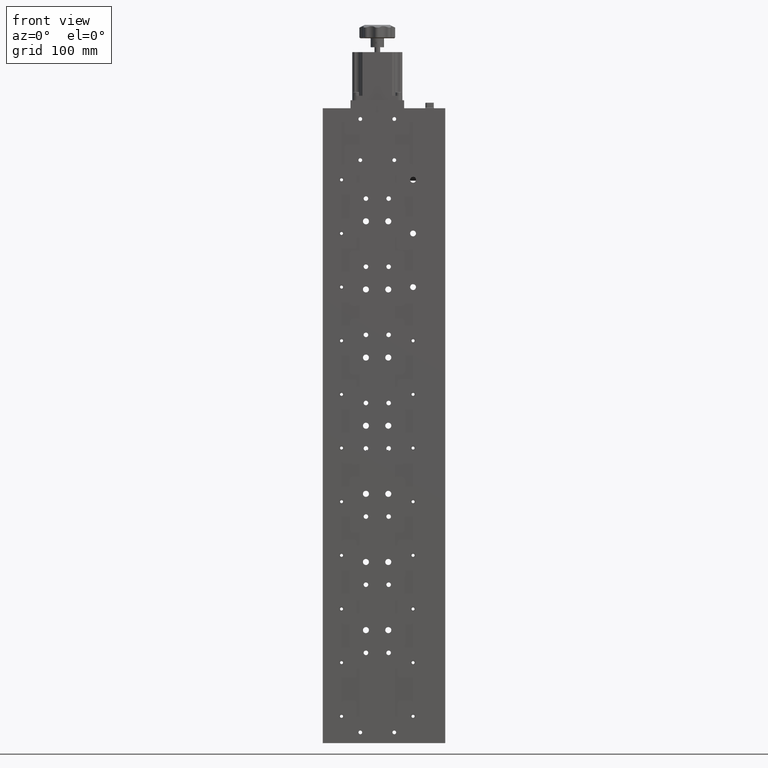
[diagram: clean part render]
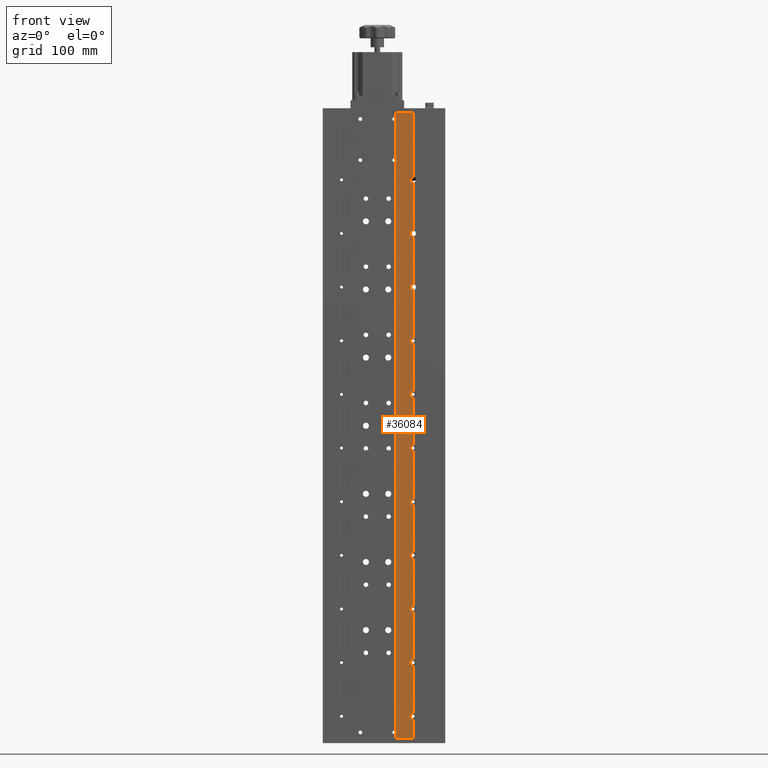
[diagram: same view with one face highlighted and labeled with its STEP entity id]
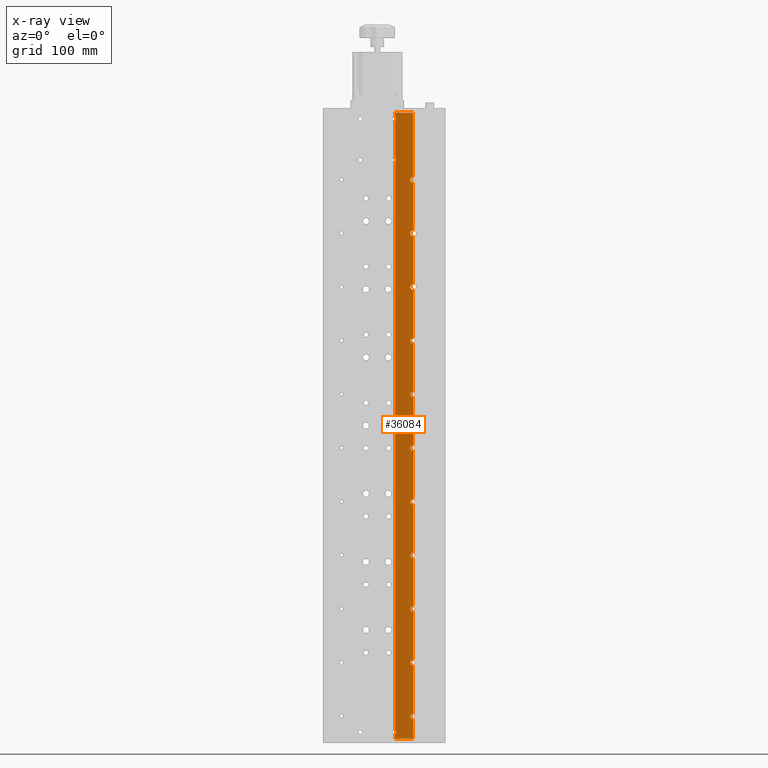
[diagram: x-ray of the same camera — body ghosted, the highlighted face saturated]
A machine part, front view. The second image highlights one B-rep face of the part: STEP entity #36084.
The next image is the same camera in x-ray: the body ghosted, the highlighted face saturated — about 0% of this face is hidden behind the body in this view.
In plain terms, the highlighted planar face has unit normal (-0, 1, 0).
Its self-contained STEP definition (entity closure, byte-faithful):
#166 = CARTESIAN_POINT ( 'NONE',  ( 29.38919164396005400, -8.917650620647952700, 151.7500000000000600 ) ) ;
#327 = EDGE_CURVE ( 'NONE', #43096, #29926, #29787, .T. ) ;
#507 = LINE ( 'NONE', #5015, #8291 ) ;
#683 = DIRECTION ( 'NONE',  ( -3.689503073101735200E-032, 1.000000000000000000, 0.0000000000000000000 ) ) ;
#756 = LINE ( 'NONE', #25849, #26290 ) ;
#787 = CARTESIAN_POINT ( 'NONE',  ( 9.389191643960055300, -8.917650620647950900, 344.8466185312619800 ) ) ;
#942 = DIRECTION ( 'NONE',  ( 0.0000000000000000000, 0.0000000000000000000, 1.000000000000000000 ) ) ;
#1029 = VERTEX_POINT ( 'NONE', #19135 ) ;
#1087 = DIRECTION ( 'NONE',  ( -3.689503073101735200E-032, 1.000000000000000000, 0.0000000000000000000 ) ) ;
#1106 = VERTEX_POINT ( 'NONE', #29645 ) ;
#1208 = CARTESIAN_POINT ( 'NONE',  ( 9.389191643960051800, -8.917650620647952700, -341.1533814687379600 ) ) ;
#1281 = VECTOR ( 'NONE', #35937, 1000.000000000000000 ) ;
#1607 = DIRECTION ( 'NONE',  ( 0.0000000000000000000, 0.0000000000000000000, 1.000000000000000000 ) ) ;
#1663 = ORIENTED_EDGE ( 'NONE', *, *, #33266, .T. ) ;
#1686 = VECTOR ( 'NONE', #40793, 1000.000000000000000 ) ;
#1767 = ORIENTED_EDGE ( 'NONE', *, *, #37430, .F. ) ;
#1886 = VECTOR ( 'NONE', #14624, 1000.000000000000000 ) ;
#2001 = VERTEX_POINT ( 'NONE', #22997 ) ;
#2197 = EDGE_CURVE ( 'NONE', #2001, #24546, #23136, .T. ) ;
#2277 = ORIENTED_EDGE ( 'NONE', *, *, #32330, .T. ) ;
#2502 = DIRECTION ( 'NONE',  ( 0.0000000000000000000, 0.0000000000000000000, -1.000000000000000000 ) ) ;
#2683 = ORIENTED_EDGE ( 'NONE', *, *, #39035, .T. ) ;
#3016 = EDGE_CURVE ( 'NONE', #19995, #38432, #20654, .T. ) ;
#3054 = VERTEX_POINT ( 'NONE', #38113 ) ;
#3711 = AXIS2_PLACEMENT_3D ( 'NONE', #11051, #34403, #14393 ) ;
#3720 = AXIS2_PLACEMENT_3D ( 'NONE', #20611, #683, #23929 ) ;
#3781 = CARTESIAN_POINT ( 'NONE',  ( 29.38919164395997200, -8.917650620647950900, -24.99999999999994000 ) ) ;
#3813 = DIRECTION ( 'NONE',  ( 1.000000000000000000, -3.689503073101735200E-032, 0.0000000000000000000 ) ) ;
#4047 = LINE ( 'NONE', #9453, #21742 ) ;
#4362 = DIRECTION ( 'NONE',  ( -3.689503073101735200E-032, 1.000000000000000000, 0.0000000000000000000 ) ) ;
#4681 = CARTESIAN_POINT ( 'NONE',  ( 29.38919164396005400, -8.917650620647952700, 278.2500000000001100 ) ) ;
#5015 = CARTESIAN_POINT ( 'NONE',  ( 9.389191643960058900, -8.917650620647950900, -390.0780488547034100 ) ) ;
#5268 = ORIENTED_EDGE ( 'NONE', *, *, #25118, .F. ) ;
#5278 = CARTESIAN_POINT ( 'NONE',  ( 29.38919164395997200, -8.917650620647950900, 215.0000000000001100 ) ) ;
#5761 = ORIENTED_EDGE ( 'NONE', *, *, #28202, .T. ) ;
#5834 = CARTESIAN_POINT ( 'NONE',  ( 29.38919164395997200, -8.917650620647952700, -204.9999999999999400 ) ) ;
#5970 = CIRCLE ( 'NONE', #31549, 3.249999999999975100 ) ;
#6793 = VECTOR ( 'NONE', #1607, 1000.000000000000000 ) ;
#6823 = ORIENTED_EDGE ( 'NONE', *, *, #17394, .F. ) ;
#6848 = CIRCLE ( 'NONE', #7896, 3.250000000000002700 ) ;
#6855 = EDGE_CURVE ( 'NONE', #9432, #39059, #15466, .T. ) ;
#6857 = CARTESIAN_POINT ( 'NONE',  ( 29.38919164395997200, -8.917650620647950900, -324.9999999999998300 ) ) ;
#6986 = VERTEX_POINT ( 'NONE', #42379 ) ;
#6995 = EDGE_CURVE ( 'NONE', #9548, #40334, #17018, .T. ) ;
#7146 = DIRECTION ( 'NONE',  ( 0.0000000000000000000, 0.0000000000000000000, 1.000000000000000000 ) ) ;
#7208 = VERTEX_POINT ( 'NONE', #16728 ) ;
#7499 = ORIENTED_EDGE ( 'NONE', *, *, #31822, .F. ) ;
#7627 = EDGE_CURVE ( 'NONE', #2001, #7208, #35671, .T. ) ;
#7730 = LINE ( 'NONE', #9721, #33257 ) ;
#7896 = AXIS2_PLACEMENT_3D ( 'NONE', #40802, #20858, #942 ) ;
#7959 = DIRECTION ( 'NONE',  ( 0.0000000000000000000, 0.0000000000000000000, -1.000000000000000000 ) ) ;
#8291 = VECTOR ( 'NONE', #15179, 1000.000000000000000 ) ;
#8319 = ORIENTED_EDGE ( 'NONE', *, *, #29323, .T. ) ;
#8594 = EDGE_LOOP ( 'NONE', ( #20882, #8319, #1767, #27269, #23689, #1663, #38837, #15159, #13401, #20102, #10224, #14766, #5268, #21379, #18712, #2277, #27310, #32024, #28749, #40396, #6823, #39467, #37876, #28480, #7499, #5761, #38592, #18163, #29361, #36089, #15863, #2683 ) ) ;
#8612 = DIRECTION ( 'NONE',  ( 0.0000000000000000000, 0.0000000000000000000, 1.000000000000000000 ) ) ;
#8690 = CIRCLE ( 'NONE', #39049, 3.249999999999975100 ) ;
#8973 = EDGE_CURVE ( 'NONE', #12953, #38466, #12693, .T. ) ;
#9076 = VERTEX_POINT ( 'NONE', #4681 ) ;
#9127 = AXIS2_PLACEMENT_3D ( 'NONE', #5834, #29133, #9179 ) ;
#9179 = DIRECTION ( 'NONE',  ( 0.0000000000000000000, 0.0000000000000000000, 1.000000000000000000 ) ) ;
#9248 = CIRCLE ( 'NONE', #12262, 2.099999999999990800 ) ;
#9432 = VERTEX_POINT ( 'NONE', #10438 ) ;
#9453 = CARTESIAN_POINT ( 'NONE',  ( 29.38919164396005400, -8.917650620647952700, 350.0000000000001100 ) ) ;
#9533 = CIRCLE ( 'NONE', #25574, 2.099999999999990800 ) ;
#9548 = VERTEX_POINT ( 'NONE', #17568 ) ;
#9721 = CARTESIAN_POINT ( 'NONE',  ( 29.38919164396005400, -8.917650620647952700, 350.0000000000001100 ) ) ;
#9757 = CARTESIAN_POINT ( 'NONE',  ( 29.38919164395997200, -8.917650620647950900, -264.9999999999998900 ) ) ;
#9876 = VECTOR ( 'NONE', #23188, 1000.000000000000000 ) ;
#9906 = EDGE_CURVE ( 'NONE', #29246, #39342, #11437, .T. ) ;
#10038 = EDGE_CURVE ( 'NONE', #32039, #29926, #32271, .T. ) ;
#10185 = DIRECTION ( 'NONE',  ( 0.0000000000000000000, 0.0000000000000000000, 1.000000000000000000 ) ) ;
#10224 = ORIENTED_EDGE ( 'NONE', *, *, #7627, .F. ) ;
#10438 = CARTESIAN_POINT ( 'NONE',  ( 29.38919164396005400, -8.917650620647952700, -88.24999999999991500 ) ) ;
#10455 = CIRCLE ( 'NONE', #23487, 3.249999999999996000 ) ;
#10592 = EDGE_CURVE ( 'NONE', #29246, #26453, #4047, .T. ) ;
#10887 = CARTESIAN_POINT ( 'NONE',  ( 29.38919164395997200, -8.917650620647952700, 275.0000000000001100 ) ) ;
#10970 = CARTESIAN_POINT ( 'NONE',  ( 29.38919164395997200, -8.917650620647952700, 95.00000000000005700 ) ) ;
#11051 = CARTESIAN_POINT ( 'NONE',  ( -50.61080835603994600, -8.917650620647952700, 350.0000000000000000 ) ) ;
#11437 = CIRCLE ( 'NONE', #3720, 3.250000000000002700 ) ;
#11489 = CARTESIAN_POINT ( 'NONE',  ( 9.389191643960058900, -8.917650620647950900, -390.0780488547034100 ) ) ;
#11630 = EDGE_CURVE ( 'NONE', #43096, #22926, #507, .T. ) ;
#11899 = VERTEX_POINT ( 'NONE', #33377 ) ;
#11942 = DIRECTION ( 'NONE',  ( -3.689503073101735200E-032, 1.000000000000000000, 0.0000000000000000000 ) ) ;
#12262 = AXIS2_PLACEMENT_3D ( 'NONE', #24279, #4362, #27676 ) ;
#12509 = LINE ( 'NONE', #38491, #29196 ) ;
#12610 = CARTESIAN_POINT ( 'NONE',  ( 29.38919164396005400, -8.917650620647950900, -349.9999999999998900 ) ) ;
#12627 = VECTOR ( 'NONE', #7959, 1000.000000000000000 ) ;
#12693 = LINE ( 'NONE', #30495, #38266 ) ;
#12702 = EDGE_CURVE ( 'NONE', #29782, #21296, #20625, .T. ) ;
#12953 = VERTEX_POINT ( 'NONE', #24063 ) ;
#13102 = DIRECTION ( 'NONE',  ( 0.0000000000000000000, 0.0000000000000000000, 1.000000000000000000 ) ) ;
#13401 = ORIENTED_EDGE ( 'NONE', *, *, #10038, .F. ) ;
#13443 = EDGE_CURVE ( 'NONE', #11899, #1029, #36625, .T. ) ;
#13512 = AXIS2_PLACEMENT_3D ( 'NONE', #5278, #28587, #8612 ) ;
#14221 = DIRECTION ( 'NONE',  ( 0.0000000000000000000, 0.0000000000000000000, 1.000000000000000000 ) ) ;
#14233 = DIRECTION ( 'NONE',  ( 1.000000000000000000, -3.689503073101735200E-032, 0.0000000000000000000 ) ) ;
#14309 = DIRECTION ( 'NONE',  ( 0.0000000000000000000, 0.0000000000000000000, 1.000000000000000000 ) ) ;
#14393 = DIRECTION ( 'NONE',  ( 0.0000000000000000000, 0.0000000000000000000, 1.000000000000000000 ) ) ;
#14422 = CARTESIAN_POINT ( 'NONE',  ( 29.38919164395997200, -8.917650620647952700, 35.00000000000005000 ) ) ;
#14597 = CARTESIAN_POINT ( 'NONE',  ( 9.389191643960058900, -8.917650620647950900, -390.0780488547034100 ) ) ;
#14624 = DIRECTION ( 'NONE',  ( 0.0000000000000000000, 0.0000000000000000000, -1.000000000000000000 ) ) ;
#14734 = DIRECTION ( 'NONE',  ( 0.0000000000000000000, 0.0000000000000000000, 1.000000000000000000 ) ) ;
#14766 = ORIENTED_EDGE ( 'NONE', *, *, #2197, .T. ) ;
#15045 = CARTESIAN_POINT ( 'NONE',  ( 9.389191643960051800, -8.917650620647952700, 298.8466185312619200 ) ) ;
#15159 = ORIENTED_EDGE ( 'NONE', *, *, #327, .T. ) ;
#15179 = DIRECTION ( 'NONE',  ( 0.0000000000000000000, 0.0000000000000000000, 1.000000000000000000 ) ) ;
#15466 = CIRCLE ( 'NONE', #34553, 3.250000000000002700 ) ;
#15643 = LINE ( 'NONE', #11489, #6793 ) ;
#15863 = ORIENTED_EDGE ( 'NONE', *, *, #23909, .F. ) ;
#15978 = CARTESIAN_POINT ( 'NONE',  ( 9.389191643960058900, -8.917650620647950900, -390.0780488547034100 ) ) ;
#16162 = DIRECTION ( 'NONE',  ( 0.0000000000000000000, 0.0000000000000000000, -1.000000000000000000 ) ) ;
#16728 = CARTESIAN_POINT ( 'NONE',  ( 9.389191643960055300, -8.917650620647950900, -344.8466185312618700 ) ) ;
#17018 = CIRCLE ( 'NONE', #9127, 3.250000000000002700 ) ;
#17212 = CARTESIAN_POINT ( 'NONE',  ( 29.38919164396005400, -8.917650620647950900, 98.25000000000005700 ) ) ;
#17310 = CIRCLE ( 'NONE', #13512, 3.250000000000002700 ) ;
#17394 = EDGE_CURVE ( 'NONE', #9432, #3054, #36090, .T. ) ;
#17568 = CARTESIAN_POINT ( 'NONE',  ( 29.38919164396005400, -8.917650620647950900, -208.2499999999999100 ) ) ;
#17614 = PLANE ( 'NONE',  #3711 ) ;
#17767 = DIRECTION ( 'NONE',  ( 0.0000000000000000000, 0.0000000000000000000, 1.000000000000000000 ) ) ;
#17957 = CARTESIAN_POINT ( 'NONE',  ( 29.38919164396005400, -8.917650620647952700, -328.2499999999998300 ) ) ;
#18123 = CARTESIAN_POINT ( 'NONE',  ( 8.389191643960051800, -8.917650620647950900, 297.0000000000000600 ) ) ;
#18163 = ORIENTED_EDGE ( 'NONE', *, *, #37158, .T. ) ;
#18499 = DIRECTION ( 'NONE',  ( 0.0000000000000000000, 0.0000000000000000000, -1.000000000000000000 ) ) ;
#18559 = CARTESIAN_POINT ( 'NONE',  ( 29.38919164396005400, -8.917650620647952700, -261.7499999999999400 ) ) ;
#18634 = FACE_OUTER_BOUND ( 'NONE', #8594, .T. ) ;
#18711 = EDGE_CURVE ( 'NONE', #11899, #39059, #7730, .T. ) ;
#18712 = ORIENTED_EDGE ( 'NONE', *, *, #28365, .F. ) ;
#18787 = AXIS2_PLACEMENT_3D ( 'NONE', #10970, #34317, #14309 ) ;
#19135 = CARTESIAN_POINT ( 'NONE',  ( 29.38919164396005400, -8.917650620647952700, -21.74999999999994300 ) ) ;
#19779 = LINE ( 'NONE', #36602, #9876 ) ;
#19834 = EDGE_CURVE ( 'NONE', #29949, #33520, #5970, .T. ) ;
#19995 = VERTEX_POINT ( 'NONE', #41054 ) ;
#20102 = ORIENTED_EDGE ( 'NONE', *, *, #21910, .T. ) ;
#20291 = AXIS2_PLACEMENT_3D ( 'NONE', #3781, #27080, #7146 ) ;
#20611 = CARTESIAN_POINT ( 'NONE',  ( 29.38919164395997200, -8.917650620647950900, 155.0000000000000600 ) ) ;
#20625 = LINE ( 'NONE', #39143, #37309 ) ;
#20654 = LINE ( 'NONE', #31294, #1886 ) ;
#20850 = CARTESIAN_POINT ( 'NONE',  ( 29.38919164396005400, -8.917650620647952700, 350.0000000000001100 ) ) ;
#20858 = DIRECTION ( 'NONE',  ( -3.689503073101735200E-032, 1.000000000000000000, 0.0000000000000000000 ) ) ;
#20882 = ORIENTED_EDGE ( 'NONE', *, *, #3016, .F. ) ;
#21019 = CARTESIAN_POINT ( 'NONE',  ( 8.389191643960051800, -8.917650620647952700, 343.0000000000000000 ) ) ;
#21296 = VERTEX_POINT ( 'NONE', #40262 ) ;
#21379 = ORIENTED_EDGE ( 'NONE', *, *, #19834, .T. ) ;
#21487 = DIRECTION ( 'NONE',  ( 0.0000000000000000000, 0.0000000000000000000, 1.000000000000000000 ) ) ;
#21505 = LINE ( 'NONE', #37950, #12627 ) ;
#21742 = VECTOR ( 'NONE', #16162, 1000.000000000000000 ) ;
#21860 = AXIS2_PLACEMENT_3D ( 'NONE', #18123, #41435, #21487 ) ;
#21892 = CARTESIAN_POINT ( 'NONE',  ( 29.38919164396005400, -8.917650620647952700, 350.0000000000001100 ) ) ;
#21910 = EDGE_CURVE ( 'NONE', #32039, #7208, #9248, .T. ) ;
#21981 = LINE ( 'NONE', #21892, #38677 ) ;
#22657 = DIRECTION ( 'NONE',  ( 0.0000000000000000000, 0.0000000000000000000, -1.000000000000000000 ) ) ;
#22823 = DIRECTION ( 'NONE',  ( 0.0000000000000000000, 0.0000000000000000000, -1.000000000000000000 ) ) ;
#22886 = CARTESIAN_POINT ( 'NONE',  ( 29.38919164396005400, -8.917650620647952700, -321.7499999999998900 ) ) ;
#22896 = CARTESIAN_POINT ( 'NONE',  ( 29.38919164396005400, -8.917650620647950900, -201.7499999999999400 ) ) ;
#22926 = VERTEX_POINT ( 'NONE', #31085 ) ;
#22997 = CARTESIAN_POINT ( 'NONE',  ( 9.389191643960055300, -8.917650620647950900, -350.0000000000000000 ) ) ;
#23136 = LINE ( 'NONE', #24277, #40871 ) ;
#23176 = VERTEX_POINT ( 'NONE', #18559 ) ;
#23188 = DIRECTION ( 'NONE',  ( 0.0000000000000000000, 0.0000000000000000000, -1.000000000000000000 ) ) ;
#23395 = VECTOR ( 'NONE', #14734, 1000.000000000000000 ) ;
#23487 = AXIS2_PLACEMENT_3D ( 'NONE', #14422, #37756, #17767 ) ;
#23689 = ORIENTED_EDGE ( 'NONE', *, *, #42088, .F. ) ;
#23909 = EDGE_CURVE ( 'NONE', #33787, #39342, #35228, .T. ) ;
#23929 = DIRECTION ( 'NONE',  ( 0.0000000000000000000, 0.0000000000000000000, 1.000000000000000000 ) ) ;
#24063 = CARTESIAN_POINT ( 'NONE',  ( 9.389191643960051800, -8.917650620647952700, 350.0000000000000000 ) ) ;
#24277 = CARTESIAN_POINT ( 'NONE',  ( -50.61080835603994600, -8.917650620647950900, -350.0000000000000000 ) ) ;
#24279 = CARTESIAN_POINT ( 'NONE',  ( 8.389191643960053600, -8.917650620647950900, -343.0000000000000000 ) ) ;
#24333 = DIRECTION ( 'NONE',  ( 0.0000000000000000000, 0.0000000000000000000, 1.000000000000000000 ) ) ;
#24546 = VERTEX_POINT ( 'NONE', #12610 ) ;
#25118 = EDGE_CURVE ( 'NONE', #29949, #24546, #35567, .T. ) ;
#25488 = EDGE_CURVE ( 'NONE', #36771, #40334, #21981, .T. ) ;
#25574 = AXIS2_PLACEMENT_3D ( 'NONE', #21019, #1087, #24333 ) ;
#25813 = CARTESIAN_POINT ( 'NONE',  ( 29.38919164396005400, -8.917650620647952700, 350.0000000000001100 ) ) ;
#25849 = CARTESIAN_POINT ( 'NONE',  ( 29.38919164396005400, -8.917650620647952700, 350.0000000000001100 ) ) ;
#26025 = CARTESIAN_POINT ( 'NONE',  ( 29.38919164396005400, -8.917650620647952700, 350.0000000000001100 ) ) ;
#26290 = VECTOR ( 'NONE', #29163, 1000.000000000000000 ) ;
#26381 = VECTOR ( 'NONE', #2502, 1000.000000000000000 ) ;
#26453 = VERTEX_POINT ( 'NONE', #17212 ) ;
#26718 = VECTOR ( 'NONE', #29351, 1000.000000000000000 ) ;
#27080 = DIRECTION ( 'NONE',  ( -3.689503073101735200E-032, 1.000000000000000000, 0.0000000000000000000 ) ) ;
#27269 = ORIENTED_EDGE ( 'NONE', *, *, #8973, .F. ) ;
#27310 = ORIENTED_EDGE ( 'NONE', *, *, #27590, .F. ) ;
#27590 = EDGE_CURVE ( 'NONE', #9548, #23176, #21505, .T. ) ;
#27676 = DIRECTION ( 'NONE',  ( 0.0000000000000000000, 0.0000000000000000000, 1.000000000000000000 ) ) ;
#27783 = CARTESIAN_POINT ( 'NONE',  ( 29.38919164396005400, -8.917650620647952700, 350.0000000000001100 ) ) ;
#28168 = EDGE_CURVE ( 'NONE', #36771, #3054, #6848, .T. ) ;
#28202 = EDGE_CURVE ( 'NONE', #1106, #21296, #10455, .T. ) ;
#28365 = EDGE_CURVE ( 'NONE', #6986, #33520, #12509, .T. ) ;
#28447 = DIRECTION ( 'NONE',  ( 0.0000000000000000000, 0.0000000000000000000, -1.000000000000000000 ) ) ;
#28480 = ORIENTED_EDGE ( 'NONE', *, *, #13443, .T. ) ;
#28587 = DIRECTION ( 'NONE',  ( -3.689503073101735200E-032, 1.000000000000000000, 0.0000000000000000000 ) ) ;
#28749 = ORIENTED_EDGE ( 'NONE', *, *, #25488, .F. ) ;
#28836 = VERTEX_POINT ( 'NONE', #787 ) ;
#29133 = DIRECTION ( 'NONE',  ( -3.689503073101735200E-032, 1.000000000000000000, 0.0000000000000000000 ) ) ;
#29163 = DIRECTION ( 'NONE',  ( 0.0000000000000000000, 0.0000000000000000000, -1.000000000000000000 ) ) ;
#29196 = VECTOR ( 'NONE', #18499, 1000.000000000000000 ) ;
#29246 = VERTEX_POINT ( 'NONE', #166 ) ;
#29323 = EDGE_CURVE ( 'NONE', #19995, #9076, #8690, .T. ) ;
#29351 = DIRECTION ( 'NONE',  ( 0.0000000000000000000, 0.0000000000000000000, -1.000000000000000000 ) ) ;
#29361 = ORIENTED_EDGE ( 'NONE', *, *, #10592, .F. ) ;
#29645 = CARTESIAN_POINT ( 'NONE',  ( 29.38919164396005400, -8.917650620647950900, 31.75000000000005700 ) ) ;
#29782 = VERTEX_POINT ( 'NONE', #30399 ) ;
#29787 = CIRCLE ( 'NONE', #21860, 2.099999999999990800 ) ;
#29926 = VERTEX_POINT ( 'NONE', #34472 ) ;
#29949 = VERTEX_POINT ( 'NONE', #17957 ) ;
#30179 = DIRECTION ( 'NONE',  ( -3.689503073101735200E-032, 1.000000000000000000, 0.0000000000000000000 ) ) ;
#30399 = CARTESIAN_POINT ( 'NONE',  ( 29.38919164396005400, -8.917650620647950900, 91.75000000000005700 ) ) ;
#30495 = CARTESIAN_POINT ( 'NONE',  ( -50.61080835603994600, -8.917650620647952700, 350.0000000000000000 ) ) ;
#31085 = CARTESIAN_POINT ( 'NONE',  ( 9.389191643960058900, -8.917650620647950900, 341.1533814687380800 ) ) ;
#31294 = CARTESIAN_POINT ( 'NONE',  ( 29.38919164396005400, -8.917650620647952700, 350.0000000000001100 ) ) ;
#31549 = AXIS2_PLACEMENT_3D ( 'NONE', #6857, #30179, #10185 ) ;
#31822 = EDGE_CURVE ( 'NONE', #1106, #1029, #19779, .T. ) ;
#31902 = CARTESIAN_POINT ( 'NONE',  ( 29.38919164395997200, -8.917650620647950900, -84.99999999999994300 ) ) ;
#31915 = CARTESIAN_POINT ( 'NONE',  ( 29.38919164396005400, -8.917650620647952700, -81.74999999999992900 ) ) ;
#32024 = ORIENTED_EDGE ( 'NONE', *, *, #6995, .T. ) ;
#32039 = VERTEX_POINT ( 'NONE', #1208 ) ;
#32271 = LINE ( 'NONE', #14597, #23395 ) ;
#32330 = EDGE_CURVE ( 'NONE', #6986, #23176, #37836, .T. ) ;
#33062 = DIRECTION ( 'NONE',  ( -3.689503073101735200E-032, 1.000000000000000000, 0.0000000000000000000 ) ) ;
#33257 = VECTOR ( 'NONE', #22823, 1000.000000000000000 ) ;
#33266 = EDGE_CURVE ( 'NONE', #28836, #22926, #9533, .T. ) ;
#33377 = CARTESIAN_POINT ( 'NONE',  ( 29.38919164396005400, -8.917650620647952700, -28.24999999999993600 ) ) ;
#33520 = VERTEX_POINT ( 'NONE', #22886 ) ;
#33787 = VERTEX_POINT ( 'NONE', #37587 ) ;
#34228 = DIRECTION ( 'NONE',  ( -3.689503073101735200E-032, 1.000000000000000000, 0.0000000000000000000 ) ) ;
#34317 = DIRECTION ( 'NONE',  ( -3.689503073101735200E-032, 1.000000000000000000, 0.0000000000000000000 ) ) ;
#34403 = DIRECTION ( 'NONE',  ( -3.689503073101735200E-032, 1.000000000000000000, 0.0000000000000000000 ) ) ;
#34472 = CARTESIAN_POINT ( 'NONE',  ( 9.389191643960055300, -8.917650620647950900, 295.1533814687380200 ) ) ;
#34553 = AXIS2_PLACEMENT_3D ( 'NONE', #31902, #11942, #35270 ) ;
#35228 = LINE ( 'NONE', #25813, #26381 ) ;
#35270 = DIRECTION ( 'NONE',  ( 0.0000000000000000000, 0.0000000000000000000, 1.000000000000000000 ) ) ;
#35506 = CARTESIAN_POINT ( 'NONE',  ( 29.38919164396005400, -8.917650620647950900, -148.2499999999999700 ) ) ;
#35567 = LINE ( 'NONE', #26025, #26718 ) ;
#35671 = LINE ( 'NONE', #15978, #1281 ) ;
#35721 = CIRCLE ( 'NONE', #18787, 3.250000000000002700 ) ;
#35937 = DIRECTION ( 'NONE',  ( 0.0000000000000000000, 0.0000000000000000000, 1.000000000000000000 ) ) ;
#36084 = ADVANCED_FACE ( 'NONE', ( #18634 ), #17614, .F. ) ;
#36089 = ORIENTED_EDGE ( 'NONE', *, *, #9906, .T. ) ;
#36090 = LINE ( 'NONE', #20850, #1686 ) ;
#36602 = CARTESIAN_POINT ( 'NONE',  ( 29.38919164396005400, -8.917650620647952700, 350.0000000000001100 ) ) ;
#36625 = CIRCLE ( 'NONE', #20291, 3.249999999999996000 ) ;
#36771 = VERTEX_POINT ( 'NONE', #35506 ) ;
#36997 = CARTESIAN_POINT ( 'NONE',  ( 29.38919164396005400, -8.917650620647950900, 158.2500000000000600 ) ) ;
#37158 = EDGE_CURVE ( 'NONE', #29782, #26453, #35721, .T. ) ;
#37309 = VECTOR ( 'NONE', #22657, 1000.000000000000000 ) ;
#37430 = EDGE_CURVE ( 'NONE', #38466, #9076, #756, .T. ) ;
#37587 = CARTESIAN_POINT ( 'NONE',  ( 29.38919164396005400, -8.917650620647952700, 211.7500000000001100 ) ) ;
#37685 = CARTESIAN_POINT ( 'NONE',  ( 29.38919164396005400, -8.917650620647952700, 218.2500000000001100 ) ) ;
#37756 = DIRECTION ( 'NONE',  ( -3.689503073101735200E-032, 1.000000000000000000, 0.0000000000000000000 ) ) ;
#37836 = CIRCLE ( 'NONE', #41117, 3.249999999999975100 ) ;
#37876 = ORIENTED_EDGE ( 'NONE', *, *, #18711, .F. ) ;
#37950 = CARTESIAN_POINT ( 'NONE',  ( 29.38919164396005400, -8.917650620647952700, 350.0000000000001100 ) ) ;
#38113 = CARTESIAN_POINT ( 'NONE',  ( 29.38919164396005400, -8.917650620647950900, -141.7499999999999400 ) ) ;
#38266 = VECTOR ( 'NONE', #3813, 1000.000000000000000 ) ;
#38432 = VERTEX_POINT ( 'NONE', #37685 ) ;
#38466 = VERTEX_POINT ( 'NONE', #27783 ) ;
#38491 = CARTESIAN_POINT ( 'NONE',  ( 29.38919164396005400, -8.917650620647952700, 350.0000000000001100 ) ) ;
#38592 = ORIENTED_EDGE ( 'NONE', *, *, #12702, .F. ) ;
#38677 = VECTOR ( 'NONE', #28447, 1000.000000000000000 ) ;
#38837 = ORIENTED_EDGE ( 'NONE', *, *, #11630, .F. ) ;
#39035 = EDGE_CURVE ( 'NONE', #33787, #38432, #17310, .T. ) ;
#39049 = AXIS2_PLACEMENT_3D ( 'NONE', #10887, #34228, #14221 ) ;
#39059 = VERTEX_POINT ( 'NONE', #31915 ) ;
#39143 = CARTESIAN_POINT ( 'NONE',  ( 29.38919164396005400, -8.917650620647952700, 350.0000000000001100 ) ) ;
#39342 = VERTEX_POINT ( 'NONE', #36997 ) ;
#39467 = ORIENTED_EDGE ( 'NONE', *, *, #6855, .T. ) ;
#40262 = CARTESIAN_POINT ( 'NONE',  ( 29.38919164396005400, -8.917650620647950900, 38.25000000000005000 ) ) ;
#40334 = VERTEX_POINT ( 'NONE', #22896 ) ;
#40396 = ORIENTED_EDGE ( 'NONE', *, *, #28168, .T. ) ;
#40793 = DIRECTION ( 'NONE',  ( 0.0000000000000000000, 0.0000000000000000000, -1.000000000000000000 ) ) ;
#40802 = CARTESIAN_POINT ( 'NONE',  ( 29.38919164395997200, -8.917650620647952700, -144.9999999999999400 ) ) ;
#40871 = VECTOR ( 'NONE', #14233, 1000.000000000000000 ) ;
#41054 = CARTESIAN_POINT ( 'NONE',  ( 29.38919164396005400, -8.917650620647950900, 271.7500000000001700 ) ) ;
#41117 = AXIS2_PLACEMENT_3D ( 'NONE', #9757, #33062, #13102 ) ;
#41435 = DIRECTION ( 'NONE',  ( -3.689503073101735200E-032, 1.000000000000000000, 0.0000000000000000000 ) ) ;
#42088 = EDGE_CURVE ( 'NONE', #28836, #12953, #15643, .T. ) ;
#42379 = CARTESIAN_POINT ( 'NONE',  ( 29.38919164396005400, -8.917650620647952700, -268.2499999999998900 ) ) ;
#43096 = VERTEX_POINT ( 'NONE', #15045 ) ;